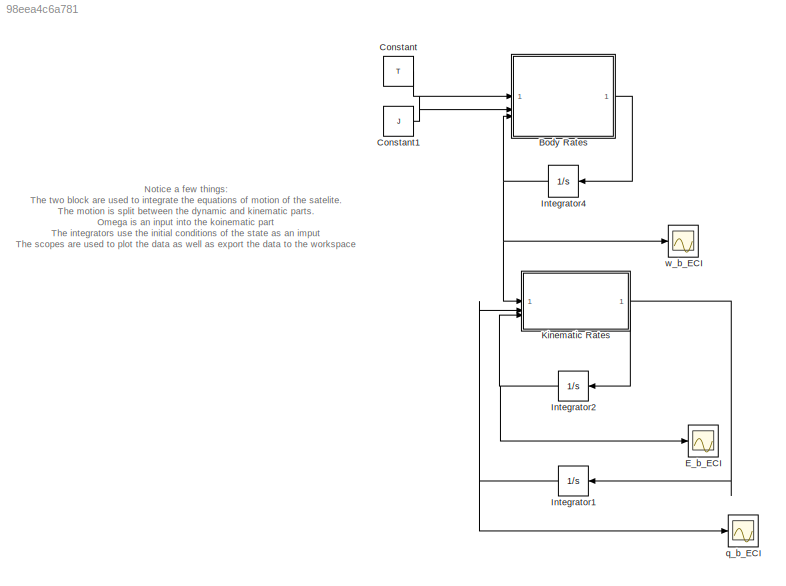
MODEL slx_98eea4c6a781
KIND model
CONFIG AbsTol = auto
CONFIG EnableMultiTasking = off
CONFIG FixedStep = auto
CONFIG MaxStep = auto
CONFIG MinStep = auto
CONFIG RelTol = 1e-3
CONFIG SampleTimeConstraint = Unconstrained
CONFIG SolverName = VariableStepAuto
CONFIG StartTime = 0.0
CONFIG StopTime = orbital_period
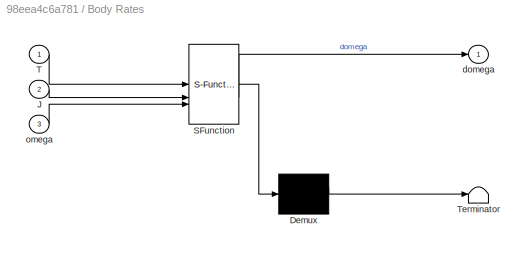
BLOCK [SubSystem] Body Rates
  ErrorFcn = Stateflow.Translate.translate
  PermitHierarchicalResolution = ExplicitOnly
  SFBlockType = MATLAB Function
  TreatAsAtomicUnit = on
BLOCK [Demux] Body Rates/ Demux 
  Outputs = 1
BLOCK [S-Function] Body Rates/ SFunction 
  EnableBusSupport = on
  FunctionName = sf_sfun
  PortCounts = [3 2]
  SFcnIsStateOwnerBlock = off
  SFunctionDeploymentMode = off
  Tag = Stateflow S-Function 6
BLOCK [Terminator] Body Rates/ Terminator 
BLOCK [Inport] Body Rates/J
  Port = 2
BLOCK [Inport] Body Rates/T
BLOCK [Outport] Body Rates/domega
  VectorParamsAs1DForOutWhenUnconnected = off
BLOCK [Inport] Body Rates/omega
  Port = 3
BLOCK [Constant] Constant
  Value = T
  VectorParams1D = off
BLOCK [Constant] Constant1
  Value = J
BLOCK [Scope] E_b_ECI
  Floating = off
  NumInputPorts = 1
  ScopeSpecificationString = Simulink.scopes.TimeScopeBlockCfg('CurrentConfiguration', extmgr.ConfigurationSet(extmgr.Configuration('Core','General UI',true),extmgr.Configuration('Core','Source UI',true),extmgr.Configuration('Sources','WiredSimulink',true,'DataLoggingVariableName','E_b_ECI','DataLogging',true,'DataLoggingSaveFormat','Array'),extmgr.Configuration('Visuals','Time Domain',true,'SerializedDisplays',{struct('MinYL...<+1489ch>
BLOCK [Integrator] Integrator1
  InitialCondition = q_b_ECI_0
BLOCK [Integrator] Integrator2
  InitialCondition = E_b_ECI_0
BLOCK [Integrator] Integrator4
  InitialCondition = w_b_ECI_0
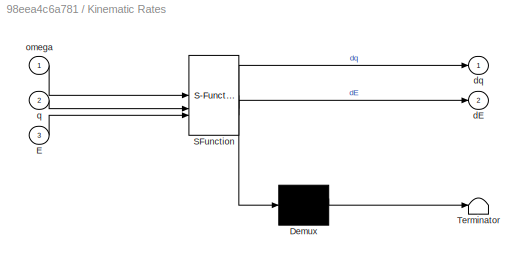
BLOCK [SubSystem] Kinematic Rates
  ErrorFcn = Stateflow.Translate.translate
  PermitHierarchicalResolution = ExplicitOnly
  SFBlockType = MATLAB Function
  TreatAsAtomicUnit = on
BLOCK [Demux] Kinematic Rates/ Demux 
  Outputs = 1
BLOCK [S-Function] Kinematic Rates/ SFunction 
  EnableBusSupport = on
  FunctionName = sf_sfun
  PortCounts = [3 3]
  SFcnIsStateOwnerBlock = off
  SFunctionDeploymentMode = off
  Tag = Stateflow S-Function 5
BLOCK [Terminator] Kinematic Rates/ Terminator 
BLOCK [Inport] Kinematic Rates/E
  Port = 3
BLOCK [Outport] Kinematic Rates/dE
  Port = 2
  VectorParamsAs1DForOutWhenUnconnected = off
BLOCK [Outport] Kinematic Rates/dq
  VectorParamsAs1DForOutWhenUnconnected = off
BLOCK [Inport] Kinematic Rates/omega
BLOCK [Inport] Kinematic Rates/q
  Port = 2
BLOCK [Scope] q_b_ECI
  Floating = off
  NumInputPorts = 1
  ScopeSpecificationString = Simulink.scopes.TimeScopeBlockCfg('CurrentConfiguration', extmgr.ConfigurationSet(extmgr.Configuration('Core','General UI',true),extmgr.Configuration('Core','Source UI',true),extmgr.Configuration('Sources','WiredSimulink',true,'DataLoggingVariableName','q_b_ECI','DataLogging',true,'DataLoggingSaveFormat','Array'),extmgr.Configuration('Visuals','Time Domain',true,'SerializedDisplays',{struct('MinYL...<+1497ch>
BLOCK [Scope] w_b_ECI
  Floating = off
  NumInputPorts = 1
  ScopeSpecificationString = Simulink.scopes.TimeScopeBlockCfg('CurrentConfiguration', extmgr.ConfigurationSet(extmgr.Configuration('Core','General UI',true),extmgr.Configuration('Core','Source UI',true),extmgr.Configuration('Sources','WiredSimulink',true,'DataLoggingVariableName','w_b_ECI','DataLogging',true,'DataLoggingSaveFormat','Array'),extmgr.Configuration('Visuals','Time Domain',true,'SerializedDisplays',{struct('MinYL...<+1481ch>
ANNOTATION (root): Notice a few things: The two block are used to integrate the equations of motion of the satelite. The motion is split between the dynamic and kinematic parts. Omega is an input into the koinematic part The integrators use the initial conditions of the state as an imput The scopes are used to plot the data as well as export the data to the workspace
LINE Body Rates:1 -> Integrator4:1
LINE Constant1:1 -> Body Rates:2
LINE Constant:1 -> Body Rates:1
NET Integrator1:1 -> Kinematic Rates:2, q_b_ECI:1
NET Integrator2:1 -> E_b_ECI:1, Kinematic Rates:3
NET Integrator4:1 -> Body Rates:3, Kinematic Rates:1, w_b_ECI:1
LINE Kinematic Rates:1 -> Integrator1:1
LINE Kinematic Rates:2 -> Integrator2:1
note: NET lines group one-source signal fan-out (src -> all destinations, sorted); 1:1 wires keep LINE
CHART Kinematic Rates states=1 transitions=1
  STATE_LABEL 'eML_blk_kernel()'
  STATE_LABEL 'SCRIPT:\nfunction [dq,dE] = kinematics(omega, q, E)\n%#codegen\n\nI = eye(3); %Identity\n\n% unpack quaternion\neps1 = q(1);\neps2 = q(2);\neps3 = q(3);\neps = [eps1; eps2; eps3];\n\neda = q(4);\n\n% compute the derivative of the quaternion components here\n             \n%Quaternion rates Eq.1.56\neps_cross = [0,  -eps3, eps2;\n             eps3,  0, -eps1;\n             -eps2, eps1, 0];\n\ndeps = 0.5*(eda*I + eps_cr...<+333ch>'
CHART Body Rates states=1 transitions=1
  STATE_LABEL 'eML_blk_kernel()'
  STATE_LABEL 'SCRIPT:\nfunction domega = dynamics(T, J, omega)\n%#codegen\n\n\n% Compute the derivative of the angular velocity $\\omega$ here\n\ndomega = J \\ (T - cross(-omega, J*omega));\n\n% phi = omega(1);\n% theta = omega(2);\n% psi = omega(3);\n% \n% %From body to euler rates\n% matrix = [1 sin(phi)*tan(theta) cos(phi)*tan(theta);\n%           0    cos(phi)            -sin(phi);\n%           0 sin(phi)*sec(theta) cos(phi)...<+48ch>'
CHART  states=0 transitions=0
CHART  states=0 transitions=0
